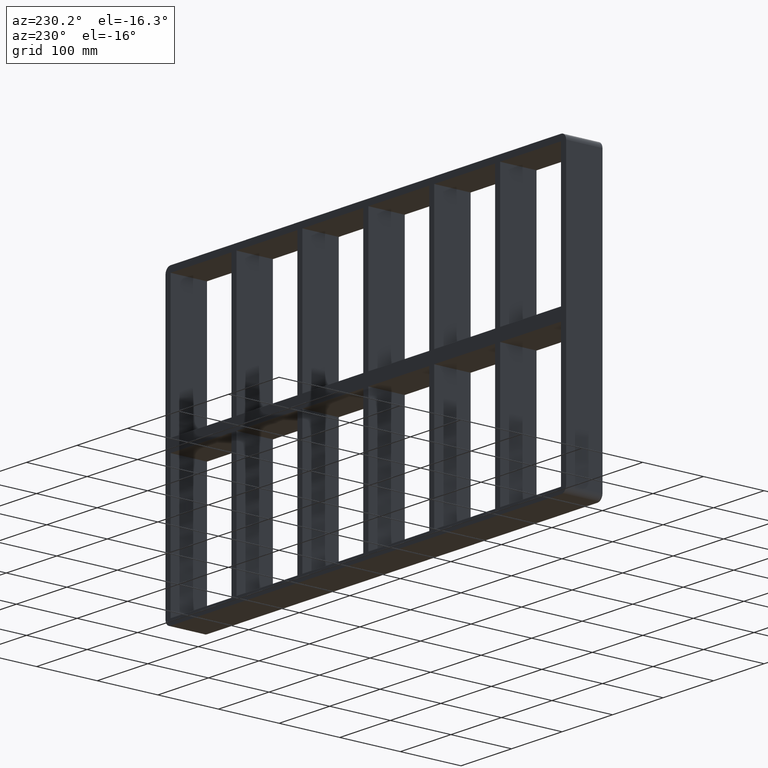
[diagram: clean part render]
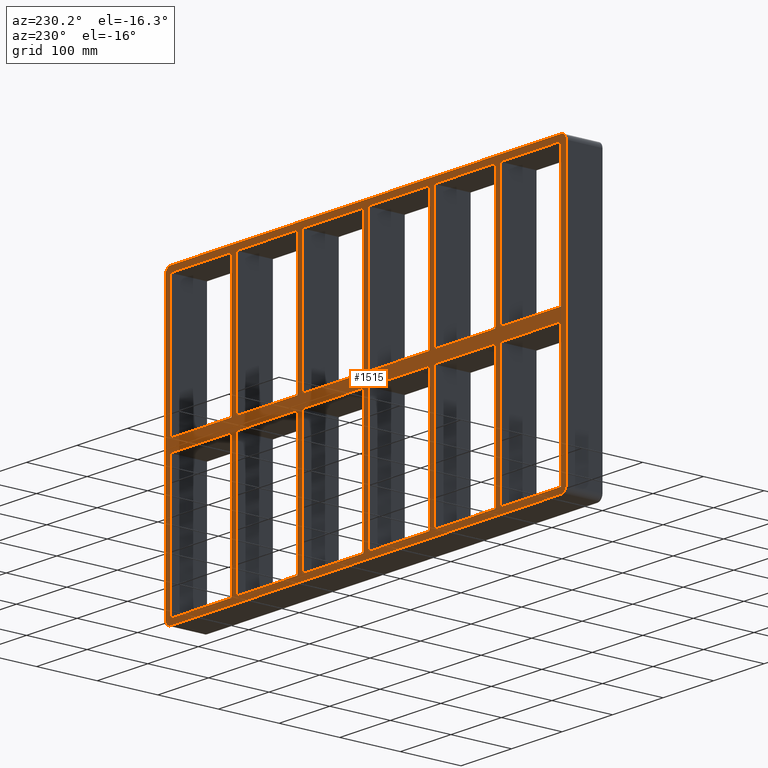
[diagram: same view with one face highlighted and labeled with its STEP entity id]
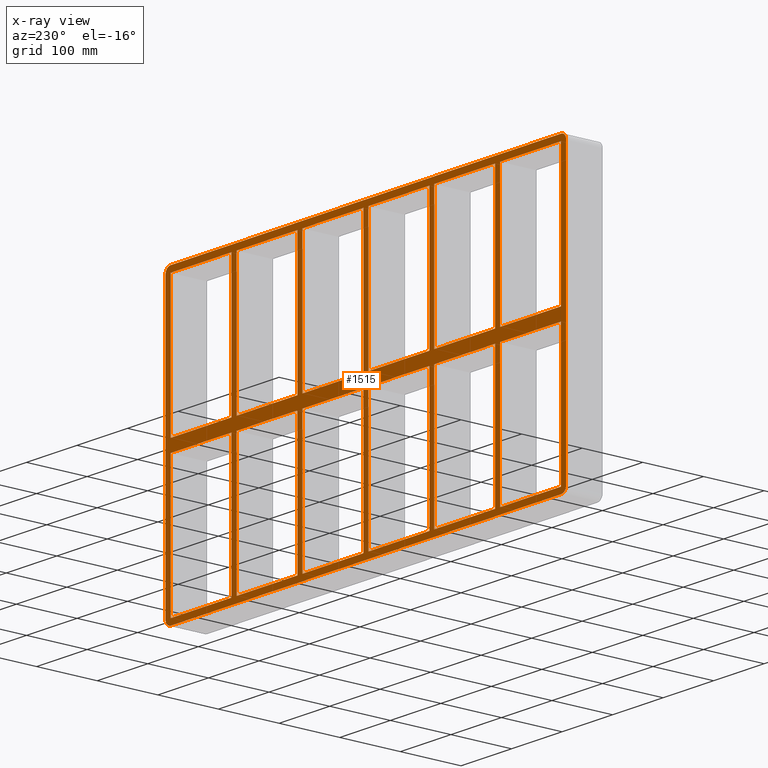
[diagram: x-ray of the same camera — body ghosted, the highlighted face saturated]
A machine part, auxiliary view. The second image highlights one B-rep face of the part: STEP entity #1515.
The next image is the same camera in x-ray: the body ghosted, the highlighted face saturated — about 0% of this face is hidden behind the body in this view.
In plain terms, the highlighted planar face has unit normal (0, 1, 0).
Its self-contained STEP definition (entity closure, byte-faithful):
#75=CARTESIAN_POINT('',(255.99999999999875,57.0,10.0));
#76=VERTEX_POINT('',#75);
#91=CARTESIAN_POINT('',(255.99999999999869,57.0,227.99999999999997));
#92=VERTEX_POINT('',#91);
#99=CARTESIAN_POINT('',(255.99999999999875,57.0,10.0));
#100=DIRECTION('',(0.0,0.0,1.0));
#101=VECTOR('',#100,217.99999999999997);
#102=LINE('',#99,#101);
#103=EDGE_CURVE('',#76,#92,#102,.T.);
#113=CARTESIAN_POINT('',(255.99999999999875,57.0,-10.000000000009344));
#114=VERTEX_POINT('',#113);
#123=CARTESIAN_POINT('',(255.99999999999878,57.0,-227.99999999999997));
#124=VERTEX_POINT('',#123);
#125=CARTESIAN_POINT('',(255.99999999999878,57.0,-227.99999999999997));
#126=DIRECTION('',(0.0,0.0,1.0));
#127=VECTOR('',#126,217.99999999999062);
#128=LINE('',#125,#127);
#129=EDGE_CURVE('',#124,#114,#128,.T.);
#153=CARTESIAN_POINT('',(265.99999999999642,57.0,10.0));
#154=VERTEX_POINT('',#153);
#163=CARTESIAN_POINT('',(265.99999999999642,57.0,227.99999999999997));
#164=VERTEX_POINT('',#163);
#165=CARTESIAN_POINT('',(265.99999999999642,57.0,227.99999999999997));
#166=DIRECTION('',(0.0,0.0,-1.0));
#167=VECTOR('',#166,217.99999999999997);
#168=LINE('',#165,#167);
#169=EDGE_CURVE('',#164,#154,#168,.T.);
#195=CARTESIAN_POINT('',(265.99999999999642,57.0,-10.000000000009344));
#196=VERTEX_POINT('',#195);
#211=CARTESIAN_POINT('',(265.99999999999642,57.0,-227.9999999999842));
#212=VERTEX_POINT('',#211);
#219=CARTESIAN_POINT('',(265.99999999999642,57.0,-10.000000000009351));
#220=DIRECTION('',(0.0,0.0,-1.0));
#221=VECTOR('',#220,217.99999999997488);
#222=LINE('',#219,#221);
#223=EDGE_CURVE('',#196,#212,#222,.T.);
#235=CARTESIAN_POINT('',(125.49999999999872,57.0,10.0));
#236=VERTEX_POINT('',#235);
#251=CARTESIAN_POINT('',(125.49999999999869,57.0,227.99999999999997));
#252=VERTEX_POINT('',#251);
#259=CARTESIAN_POINT('',(125.49999999999872,57.0,10.0));
#260=DIRECTION('',(0.0,0.0,1.0));
#261=VECTOR('',#260,217.99999999999997);
#262=LINE('',#259,#261);
#263=EDGE_CURVE('',#236,#252,#262,.T.);
#273=CARTESIAN_POINT('',(125.49999999999872,57.0,-10.000000000009344));
#274=VERTEX_POINT('',#273);
#283=CARTESIAN_POINT('',(125.49999999999876,57.0,-227.99999999999997));
#284=VERTEX_POINT('',#283);
#285=CARTESIAN_POINT('',(125.49999999999876,57.0,-227.99999999999997));
#286=DIRECTION('',(0.0,0.0,1.0));
#287=VECTOR('',#286,217.99999999999062);
#288=LINE('',#285,#287);
#289=EDGE_CURVE('',#284,#274,#288,.T.);
#313=CARTESIAN_POINT('',(135.49999999999642,57.0,10.0));
#314=VERTEX_POINT('',#313);
#323=CARTESIAN_POINT('',(135.49999999999642,57.0,227.99999999999997));
#324=VERTEX_POINT('',#323);
#325=CARTESIAN_POINT('',(135.49999999999642,57.0,227.99999999999997));
#326=DIRECTION('',(0.0,0.0,-1.0));
#327=VECTOR('',#326,217.99999999999997);
#328=LINE('',#325,#327);
#329=EDGE_CURVE('',#324,#314,#328,.T.);
#355=CARTESIAN_POINT('',(135.49999999999642,57.0,-10.000000000009344));
#356=VERTEX_POINT('',#355);
#371=CARTESIAN_POINT('',(135.49999999999642,57.0,-227.9999999999842));
#372=VERTEX_POINT('',#371);
#379=CARTESIAN_POINT('',(135.49999999999642,57.0,-10.000000000009351));
#380=DIRECTION('',(0.0,0.0,-1.0));
#381=VECTOR('',#380,217.99999999997488);
#382=LINE('',#379,#381);
#383=EDGE_CURVE('',#356,#372,#382,.T.);
#395=CARTESIAN_POINT('',(-5.000000000001315,57.0,10.0));
#396=VERTEX_POINT('',#395);
#411=CARTESIAN_POINT('',(-5.00000000000135,57.0,227.99999999999997));
#412=VERTEX_POINT('',#411);
#419=CARTESIAN_POINT('',(-5.000000000001316,57.0,10.0));
#420=DIRECTION('',(0.0,0.0,1.0));
#421=VECTOR('',#420,217.99999999999997);
#422=LINE('',#419,#421);
#423=EDGE_CURVE('',#396,#412,#422,.T.);
#433=CARTESIAN_POINT('',(-5.000000000001314,57.0,-10.000000000009379));
#434=VERTEX_POINT('',#433);
#443=CARTESIAN_POINT('',(-5.000000000001279,57.0,-227.99999999999997));
#444=VERTEX_POINT('',#443);
#445=CARTESIAN_POINT('',(-5.000000000001279,57.0,-227.99999999999997));
#446=DIRECTION('',(0.0,0.0,1.0));
#447=VECTOR('',#446,217.99999999999059);
#448=LINE('',#445,#447);
#449=EDGE_CURVE('',#444,#434,#448,.T.);
#473=CARTESIAN_POINT('',(4.999999999996376,57.0,10.0));
#474=VERTEX_POINT('',#473);
#483=CARTESIAN_POINT('',(4.999999999996376,57.0,227.99999999999997));
#484=VERTEX_POINT('',#483);
#485=CARTESIAN_POINT('',(4.999999999996376,57.0,227.99999999999997));
#486=DIRECTION('',(0.0,0.0,-1.0));
#487=VECTOR('',#486,217.99999999999997);
#488=LINE('',#485,#487);
#489=EDGE_CURVE('',#484,#474,#488,.T.);
#515=CARTESIAN_POINT('',(4.999999999996376,57.0,-10.000000000009344));
#516=VERTEX_POINT('',#515);
#531=CARTESIAN_POINT('',(4.999999999996376,57.0,-227.9999999999842));
#532=VERTEX_POINT('',#531);
#539=CARTESIAN_POINT('',(4.999999999996376,57.0,-10.000000000009351));
#540=DIRECTION('',(0.0,0.0,-1.0));
#541=VECTOR('',#540,217.99999999997488);
#542=LINE('',#539,#541);
#543=EDGE_CURVE('',#516,#532,#542,.T.);
#555=CARTESIAN_POINT('',(-135.50000000000131,57.0,10.0));
#556=VERTEX_POINT('',#555);
#571=CARTESIAN_POINT('',(-135.50000000000136,57.0,227.99999999999997));
#572=VERTEX_POINT('',#571);
#579=CARTESIAN_POINT('',(-135.50000000000131,57.0,10.0));
#580=DIRECTION('',(0.0,0.0,1.0));
#581=VECTOR('',#580,217.99999999999997);
#582=LINE('',#579,#581);
#583=EDGE_CURVE('',#556,#572,#582,.T.);
#593=CARTESIAN_POINT('',(-135.50000000000131,57.0,-10.000000000009379));
#594=VERTEX_POINT('',#593);
#603=CARTESIAN_POINT('',(-135.50000000000128,57.0,-227.99999999999997));
#604=VERTEX_POINT('',#603);
#605=CARTESIAN_POINT('',(-135.50000000000128,57.0,-227.99999999999997));
#606=DIRECTION('',(0.0,0.0,1.0));
#607=VECTOR('',#606,217.99999999999059);
#608=LINE('',#605,#607);
#609=EDGE_CURVE('',#604,#594,#608,.T.);
#633=CARTESIAN_POINT('',(-125.50000000000364,57.0,10.0));
#634=VERTEX_POINT('',#633);
#643=CARTESIAN_POINT('',(-125.50000000000364,57.0,227.99999999999997));
#644=VERTEX_POINT('',#643);
#645=CARTESIAN_POINT('',(-125.50000000000364,57.0,227.99999999999997));
#646=DIRECTION('',(0.0,0.0,-1.0));
#647=VECTOR('',#646,217.99999999999997);
#648=LINE('',#645,#647);
#649=EDGE_CURVE('',#644,#634,#648,.T.);
#675=CARTESIAN_POINT('',(-125.50000000000364,57.0,-10.000000000009379));
#676=VERTEX_POINT('',#675);
#691=CARTESIAN_POINT('',(-125.50000000000364,57.0,-227.9999999999842));
#692=VERTEX_POINT('',#691);
#699=CARTESIAN_POINT('',(-125.50000000000364,57.0,-10.000000000009379));
#700=DIRECTION('',(0.0,0.0,-1.0));
#701=VECTOR('',#700,217.99999999997485);
#702=LINE('',#699,#701);
#703=EDGE_CURVE('',#676,#692,#702,.T.);
#714=CARTESIAN_POINT('',(-256.00000000000364,57.0,-227.9999999999842));
#715=VERTEX_POINT('',#714);
#716=CARTESIAN_POINT('',(-256.00000000000358,57.0,-227.99999999999997));
#717=DIRECTION('',(1.0,0.0,0.0));
#718=VECTOR('',#717,120.50000000000227);
#719=LINE('',#716,#718);
#720=EDGE_CURVE('',#715,#604,#719,.T.);
#745=CARTESIAN_POINT('',(-125.50000000000364,57.0,-227.99999999999997));
#746=DIRECTION('',(1.0,0.0,0.0));
#747=VECTOR('',#746,120.50000000000236);
#748=LINE('',#745,#747);
#749=EDGE_CURVE('',#692,#444,#748,.T.);
#767=CARTESIAN_POINT('',(4.999999999996362,57.0,-227.99999999999997));
#768=DIRECTION('',(1.0,0.0,0.0));
#769=VECTOR('',#768,120.50000000000239);
#770=LINE('',#767,#769);
#771=EDGE_CURVE('',#532,#284,#770,.T.);
#789=CARTESIAN_POINT('',(135.49999999999642,57.0,-227.99999999999997));
#790=DIRECTION('',(1.0,0.0,0.0));
#791=VECTOR('',#790,120.50000000000233);
#792=LINE('',#789,#791);
#793=EDGE_CURVE('',#372,#124,#792,.T.);
#819=CARTESIAN_POINT('',(386.50000000000011,57.0,-227.99999999999997));
#820=VERTEX_POINT('',#819);
#827=CARTESIAN_POINT('',(265.99999999999642,57.0,-227.99999999999997));
#828=DIRECTION('',(1.0,0.0,0.0));
#829=VECTOR('',#828,120.50000000000369);
#830=LINE('',#827,#829);
#831=EDGE_CURVE('',#212,#820,#830,.T.);
#1153=CARTESIAN_POINT('',(386.49999999999631,57.0,-10.000000000009344));
#1154=VERTEX_POINT('',#1153);
#1155=CARTESIAN_POINT('',(386.49999999999636,57.0,-10.000000000009344));
#1156=DIRECTION('',(-1.0,0.0,0.0));
#1157=VECTOR('',#1156,120.49999999999994);
#1158=LINE('',#1155,#1157);
#1159=EDGE_CURVE('',#1154,#196,#1158,.T.);
#1178=CARTESIAN_POINT('',(-256.00000000000364,57.0,-10.000000000009372));
#1179=VERTEX_POINT('',#1178);
#1186=CARTESIAN_POINT('',(-135.50000000000136,57.0,-10.000000000009369));
#1187=DIRECTION('',(-1.0,0.0,0.0));
#1188=VECTOR('',#1187,120.50000000000227);
#1189=LINE('',#1186,#1188);
#1190=EDGE_CURVE('',#594,#1179,#1189,.T.);
#1203=CARTESIAN_POINT('',(-5.000000000001251,57.0,-10.000000000009361));
#1204=DIRECTION('',(-1.0,0.0,0.0));
#1205=VECTOR('',#1204,120.50000000000239);
#1206=LINE('',#1203,#1205);
#1207=EDGE_CURVE('',#434,#676,#1206,.T.);
#1220=CARTESIAN_POINT('',(125.49999999999875,57.0,-10.000000000009356));
#1221=DIRECTION('',(-1.0,0.0,0.0));
#1222=VECTOR('',#1221,120.50000000000239);
#1223=LINE('',#1220,#1222);
#1224=EDGE_CURVE('',#274,#516,#1223,.T.);
#1229=CARTESIAN_POINT('',(0.0,57.0,0.0));
#1230=DIRECTION('',(0.0,1.0,0.0));
#1231=DIRECTION('',(0.0,0.0,1.0));
#1232=AXIS2_PLACEMENT_3D('',#1229,#1230,#1231);
#1233=PLANE('',#1232);
#1234=CARTESIAN_POINT('',(386.50000000000006,57.0,-238.0));
#1235=VERTEX_POINT('',#1234);
#1236=CARTESIAN_POINT('',(396.50000000000006,57.0,-228.0));
#1237=VERTEX_POINT('',#1236);
#1238=CARTESIAN_POINT('',(386.50000000000006,57.0,-228.0));
#1239=DIRECTION('',(0.0,-1.0,0.0));
#1240=DIRECTION('',(0.707106781186547,0.0,-0.707106781186547));
#1241=AXIS2_PLACEMENT_3D('',#1238,#1239,#1240);
#1242=CIRCLE('',#1241,9.999999999999998);
#1243=EDGE_CURVE('',#1235,#1237,#1242,.T.);
#1244=ORIENTED_EDGE('',*,*,#1243,.F.);
#1245=CARTESIAN_POINT('',(-386.50000000000006,57.0,-238.0));
#1246=VERTEX_POINT('',#1245);
#1247=CARTESIAN_POINT('',(386.50000000000006,57.0,-238.0));
#1248=DIRECTION('',(-1.0,0.0,0.0));
#1249=VECTOR('',#1248,773.00000000000011);
#1250=LINE('',#1247,#1249);
#1251=EDGE_CURVE('',#1235,#1246,#1250,.T.);
#1252=ORIENTED_EDGE('',*,*,#1251,.T.);
#1253=CARTESIAN_POINT('',(-396.50000000000006,57.0,-228.0));
#1254=VERTEX_POINT('',#1253);
#1255=CARTESIAN_POINT('',(-386.50000000000006,57.0,-228.0));
#1256=DIRECTION('',(0.0,-1.0,0.0));
#1257=DIRECTION('',(-0.707106781186547,0.0,-0.707106781186547));
#1258=AXIS2_PLACEMENT_3D('',#1255,#1256,#1257);
#1259=CIRCLE('',#1258,9.999999999999998);
#1260=EDGE_CURVE('',#1254,#1246,#1259,.T.);
#1261=ORIENTED_EDGE('',*,*,#1260,.F.);
#1262=CARTESIAN_POINT('',(-396.50000000000006,57.0,228.0));
#1263=VERTEX_POINT('',#1262);
#1264=CARTESIAN_POINT('',(-396.50000000000006,57.0,-228.0));
#1265=DIRECTION('',(0.0,0.0,1.0));
#1266=VECTOR('',#1265,456.0);
#1267=LINE('',#1264,#1266);
#1268=EDGE_CURVE('',#1254,#1263,#1267,.T.);
#1269=ORIENTED_EDGE('',*,*,#1268,.T.);
#1270=CARTESIAN_POINT('',(-386.50000000000006,57.0,238.0));
#1271=VERTEX_POINT('',#1270);
#1272=CARTESIAN_POINT('',(-386.50000000000006,57.0,228.0));
#1273=DIRECTION('',(0.0,-1.0,0.0));
#1274=DIRECTION('',(-0.707106781186547,0.0,0.707106781186547));
#1275=AXIS2_PLACEMENT_3D('',#1272,#1273,#1274);
#1276=CIRCLE('',#1275,9.999999999999998);
#1277=EDGE_CURVE('',#1271,#1263,#1276,.T.);
#1278=ORIENTED_EDGE('',*,*,#1277,.F.);
#1279=CARTESIAN_POINT('',(386.50000000000006,57.0,238.0));
#1280=VERTEX_POINT('',#1279);
#1281=CARTESIAN_POINT('',(-386.50000000000006,57.0,238.0));
#1282=DIRECTION('',(1.0,0.0,0.0));
#1283=VECTOR('',#1282,773.00000000000011);
#1284=LINE('',#1281,#1283);
#1285=EDGE_CURVE('',#1271,#1280,#1284,.T.);
#1286=ORIENTED_EDGE('',*,*,#1285,.T.);
#1287=CARTESIAN_POINT('',(396.50000000000006,57.0,228.0));
#1288=VERTEX_POINT('',#1287);
#1289=CARTESIAN_POINT('',(386.50000000000006,57.0,228.0));
#1290=DIRECTION('',(0.0,-1.0,0.0));
#1291=DIRECTION('',(0.707106781186547,0.0,0.707106781186547));
#1292=AXIS2_PLACEMENT_3D('',#1289,#1290,#1291);
#1293=CIRCLE('',#1292,9.999999999999998);
#1294=EDGE_CURVE('',#1288,#1280,#1293,.T.);
#1295=ORIENTED_EDGE('',*,*,#1294,.F.);
#1296=CARTESIAN_POINT('',(396.50000000000006,57.0,228.0));
#1297=DIRECTION('',(0.0,0.0,-1.0));
#1298=VECTOR('',#1297,456.0);
#1299=LINE('',#1296,#1298);
#1300=EDGE_CURVE('',#1288,#1237,#1299,.T.);
#1301=ORIENTED_EDGE('',*,*,#1300,.T.);
#1302=EDGE_LOOP('',(#1244,#1252,#1261,#1269,#1278,#1286,#1295,#1301));
#1303=FACE_OUTER_BOUND('',#1302,.T.);
#1304=ORIENTED_EDGE('',*,*,#831,.T.);
#1305=CARTESIAN_POINT('',(386.50000000000011,57.0,-227.99999999999994));
#1306=DIRECTION('',(0.0,0.0,1.0));
#1307=VECTOR('',#1306,217.99999999999059);
#1308=LINE('',#1305,#1307);
#1309=EDGE_CURVE('',#820,#1154,#1308,.T.);
#1310=ORIENTED_EDGE('',*,*,#1309,.T.);
#1311=ORIENTED_EDGE('',*,*,#1159,.T.);
#1312=ORIENTED_EDGE('',*,*,#223,.T.);
#1313=EDGE_LOOP('',(#1304,#1310,#1311,#1312));
#1314=FACE_BOUND('',#1313,.T.);
#1315=CARTESIAN_POINT('',(386.5,57.0,10.0));
#1316=VERTEX_POINT('',#1315);
#1317=CARTESIAN_POINT('',(265.99999999999653,57.0,10.0));
#1318=DIRECTION('',(1.0,0.0,0.0));
#1319=VECTOR('',#1318,120.50000000000341);
#1320=LINE('',#1317,#1319);
#1321=EDGE_CURVE('',#154,#1316,#1320,.T.);
#1322=ORIENTED_EDGE('',*,*,#1321,.T.);
#1323=CARTESIAN_POINT('',(386.50000000000011,57.0,227.99999999999997));
#1324=VERTEX_POINT('',#1323);
#1325=CARTESIAN_POINT('',(386.50000000000011,57.0,10.0));
#1326=DIRECTION('',(0.0,0.0,1.0));
#1327=VECTOR('',#1326,217.99999999999997);
#1328=LINE('',#1325,#1327);
#1329=EDGE_CURVE('',#1316,#1324,#1328,.T.);
#1330=ORIENTED_EDGE('',*,*,#1329,.T.);
#1331=CARTESIAN_POINT('',(386.50000000000011,57.0,228.0));
#1332=DIRECTION('',(-1.0,0.0,0.0));
#1333=VECTOR('',#1332,120.50000000000375);
#1334=LINE('',#1331,#1333);
#1335=EDGE_CURVE('',#1324,#164,#1334,.T.);
#1336=ORIENTED_EDGE('',*,*,#1335,.T.);
#1337=ORIENTED_EDGE('',*,*,#169,.T.);
#1338=EDGE_LOOP('',(#1322,#1330,#1336,#1337));
#1339=FACE_BOUND('',#1338,.T.);
#1340=ORIENTED_EDGE('',*,*,#129,.T.);
#1341=CARTESIAN_POINT('',(255.99999999999875,57.0,-10.000000000009349));
#1342=DIRECTION('',(-1.0,0.0,0.0));
#1343=VECTOR('',#1342,120.50000000000233);
#1344=LINE('',#1341,#1343);
#1345=EDGE_CURVE('',#114,#356,#1344,.T.);
#1346=ORIENTED_EDGE('',*,*,#1345,.T.);
#1347=ORIENTED_EDGE('',*,*,#383,.T.);
#1348=ORIENTED_EDGE('',*,*,#793,.T.);
#1349=EDGE_LOOP('',(#1340,#1346,#1347,#1348));
#1350=FACE_BOUND('',#1349,.T.);
#1351=ORIENTED_EDGE('',*,*,#103,.T.);
#1352=CARTESIAN_POINT('',(255.99999999999866,57.0,228.0));
#1353=DIRECTION('',(-1.0,0.0,0.0));
#1354=VECTOR('',#1353,120.50000000000222);
#1355=LINE('',#1352,#1354);
#1356=EDGE_CURVE('',#92,#324,#1355,.T.);
#1357=ORIENTED_EDGE('',*,*,#1356,.T.);
#1358=ORIENTED_EDGE('',*,*,#329,.T.);
#1359=CARTESIAN_POINT('',(135.49999999999642,57.0,10.0));
#1360=DIRECTION('',(1.0,0.0,0.0));
#1361=VECTOR('',#1360,120.50000000000239);
#1362=LINE('',#1359,#1361);
#1363=EDGE_CURVE('',#314,#76,#1362,.T.);
#1364=ORIENTED_EDGE('',*,*,#1363,.T.);
#1365=EDGE_LOOP('',(#1351,#1357,#1358,#1364));
#1366=FACE_BOUND('',#1365,.T.);
#1367=ORIENTED_EDGE('',*,*,#289,.T.);
#1368=ORIENTED_EDGE('',*,*,#1224,.T.);
#1369=ORIENTED_EDGE('',*,*,#543,.T.);
#1370=ORIENTED_EDGE('',*,*,#771,.T.);
#1371=EDGE_LOOP('',(#1367,#1368,#1369,#1370));
#1372=FACE_BOUND('',#1371,.T.);
#1373=ORIENTED_EDGE('',*,*,#263,.T.);
#1374=CARTESIAN_POINT('',(125.49999999999872,57.0,228.0));
#1375=DIRECTION('',(-1.0,0.0,0.0));
#1376=VECTOR('',#1375,120.50000000000233);
#1377=LINE('',#1374,#1376);
#1378=EDGE_CURVE('',#252,#484,#1377,.T.);
#1379=ORIENTED_EDGE('',*,*,#1378,.T.);
#1380=ORIENTED_EDGE('',*,*,#489,.T.);
#1381=CARTESIAN_POINT('',(4.999999999996419,57.0,10.0));
#1382=DIRECTION('',(1.0,0.0,0.0));
#1383=VECTOR('',#1382,120.50000000000239);
#1384=LINE('',#1381,#1383);
#1385=EDGE_CURVE('',#474,#236,#1384,.T.);
#1386=ORIENTED_EDGE('',*,*,#1385,.T.);
#1387=EDGE_LOOP('',(#1373,#1379,#1380,#1386));
#1388=FACE_BOUND('',#1387,.T.);
#1389=ORIENTED_EDGE('',*,*,#449,.T.);
#1390=ORIENTED_EDGE('',*,*,#1207,.T.);
#1391=ORIENTED_EDGE('',*,*,#703,.T.);
#1392=ORIENTED_EDGE('',*,*,#749,.T.);
#1393=EDGE_LOOP('',(#1389,#1390,#1391,#1392));
#1394=FACE_BOUND('',#1393,.T.);
#1395=ORIENTED_EDGE('',*,*,#423,.T.);
#1396=CARTESIAN_POINT('',(-5.000000000001336,57.0,228.0));
#1397=DIRECTION('',(-1.0,0.0,0.0));
#1398=VECTOR('',#1397,120.5000000000023);
#1399=LINE('',#1396,#1398);
#1400=EDGE_CURVE('',#412,#644,#1399,.T.);
#1401=ORIENTED_EDGE('',*,*,#1400,.T.);
#1402=ORIENTED_EDGE('',*,*,#649,.T.);
#1403=CARTESIAN_POINT('',(-125.50000000000364,57.0,10.0));
#1404=DIRECTION('',(1.0,0.0,0.0));
#1405=VECTOR('',#1404,120.50000000000233);
#1406=LINE('',#1403,#1405);
#1407=EDGE_CURVE('',#634,#396,#1406,.T.);
#1408=ORIENTED_EDGE('',*,*,#1407,.T.);
#1409=EDGE_LOOP('',(#1395,#1401,#1402,#1408));
#1410=FACE_BOUND('',#1409,.T.);
#1411=ORIENTED_EDGE('',*,*,#609,.T.);
#1412=ORIENTED_EDGE('',*,*,#1190,.T.);
#1413=CARTESIAN_POINT('',(-256.00000000000364,57.0,-10.000000000009379));
#1414=DIRECTION('',(0.0,0.0,-1.0));
#1415=VECTOR('',#1414,217.99999999997485);
#1416=LINE('',#1413,#1415);
#1417=EDGE_CURVE('',#1179,#715,#1416,.T.);
#1418=ORIENTED_EDGE('',*,*,#1417,.T.);
#1419=ORIENTED_EDGE('',*,*,#720,.T.);
#1420=EDGE_LOOP('',(#1411,#1412,#1418,#1419));
#1421=FACE_BOUND('',#1420,.T.);
#1422=CARTESIAN_POINT('',(-386.49999999999983,57.0,10.0));
#1423=VERTEX_POINT('',#1422);
#1424=CARTESIAN_POINT('',(-266.00000000000131,57.0,10.0));
#1425=VERTEX_POINT('',#1424);
#1426=CARTESIAN_POINT('',(-386.49999999999983,57.0,10.0));
#1427=DIRECTION('',(1.0,0.0,0.0));
#1428=VECTOR('',#1427,120.49999999999852);
#1429=LINE('',#1426,#1428);
#1430=EDGE_CURVE('',#1423,#1425,#1429,.T.);
#1431=ORIENTED_EDGE('',*,*,#1430,.T.);
#1432=CARTESIAN_POINT('',(-266.00000000000136,57.0,227.99999999999997));
#1433=VERTEX_POINT('',#1432);
#1434=CARTESIAN_POINT('',(-266.00000000000136,57.0,10.0));
#1435=DIRECTION('',(0.0,0.0,1.0));
#1436=VECTOR('',#1435,217.99999999999997);
#1437=LINE('',#1434,#1436);
#1438=EDGE_CURVE('',#1425,#1433,#1437,.T.);
#1439=ORIENTED_EDGE('',*,*,#1438,.T.);
#1440=CARTESIAN_POINT('',(-386.5,57.0,227.99999999999997));
#1441=VERTEX_POINT('',#1440);
#1442=CARTESIAN_POINT('',(-266.00000000000136,57.0,228.0));
#1443=DIRECTION('',(-1.0,0.0,0.0));
#1444=VECTOR('',#1443,120.49999999999864);
#1445=LINE('',#1442,#1444);
#1446=EDGE_CURVE('',#1433,#1441,#1445,.T.);
#1447=ORIENTED_EDGE('',*,*,#1446,.T.);
#1448=CARTESIAN_POINT('',(-386.50000000000006,57.0,227.99999999999994));
#1449=DIRECTION('',(0.0,0.0,-1.0));
#1450=VECTOR('',#1449,217.99999999999994);
#1451=LINE('',#1448,#1450);
#1452=EDGE_CURVE('',#1441,#1423,#1451,.T.);
#1453=ORIENTED_EDGE('',*,*,#1452,.T.);
#1454=EDGE_LOOP('',(#1431,#1439,#1447,#1453));
#1455=FACE_BOUND('',#1454,.T.);
#1456=CARTESIAN_POINT('',(-386.49999999999983,57.0,-10.000000000009379));
#1457=VERTEX_POINT('',#1456);
#1458=CARTESIAN_POINT('',(-386.5,57.0,-227.99999999999997));
#1459=VERTEX_POINT('',#1458);
#1460=CARTESIAN_POINT('',(-386.50000000000006,57.0,-10.000000000009379));
#1461=DIRECTION('',(0.0,0.0,-1.0));
#1462=VECTOR('',#1461,217.99999999999059);
#1463=LINE('',#1460,#1462);
#1464=EDGE_CURVE('',#1457,#1459,#1463,.T.);
#1465=ORIENTED_EDGE('',*,*,#1464,.T.);
#1466=CARTESIAN_POINT('',(-266.00000000000131,57.0,-227.99999999999997));
#1467=VERTEX_POINT('',#1466);
#1468=CARTESIAN_POINT('',(-386.50000000000006,57.0,-227.99999999999997));
#1469=DIRECTION('',(1.0,0.0,0.0));
#1470=VECTOR('',#1469,120.49999999999875);
#1471=LINE('',#1468,#1470);
#1472=EDGE_CURVE('',#1459,#1467,#1471,.T.);
#1473=ORIENTED_EDGE('',*,*,#1472,.T.);
#1474=CARTESIAN_POINT('',(-266.00000000000136,57.0,-10.000000000009376));
#1475=VERTEX_POINT('',#1474);
#1476=CARTESIAN_POINT('',(-266.00000000000131,57.0,-227.99999999999997));
#1477=DIRECTION('',(0.0,0.0,1.0));
#1478=VECTOR('',#1477,217.99999999999059);
#1479=LINE('',#1476,#1478);
#1480=EDGE_CURVE('',#1467,#1475,#1479,.T.);
#1481=ORIENTED_EDGE('',*,*,#1480,.T.);
#1482=CARTESIAN_POINT('',(-266.00000000000136,57.0,-10.000000000009374));
#1483=DIRECTION('',(-1.0,0.0,0.0));
#1484=VECTOR('',#1483,120.49999999999841);
#1485=LINE('',#1482,#1484);
#1486=EDGE_CURVE('',#1475,#1457,#1485,.T.);
#1487=ORIENTED_EDGE('',*,*,#1486,.T.);
#1488=EDGE_LOOP('',(#1465,#1473,#1481,#1487));
#1489=FACE_BOUND('',#1488,.T.);
#1490=ORIENTED_EDGE('',*,*,#583,.T.);
#1491=CARTESIAN_POINT('',(-256.00000000000364,57.0,227.99999999999997));
#1492=VERTEX_POINT('',#1491);
#1493=CARTESIAN_POINT('',(-135.50000000000136,57.0,228.0));
#1494=DIRECTION('',(-1.0,0.0,0.0));
#1495=VECTOR('',#1494,120.50000000000227);
#1496=LINE('',#1493,#1495);
#1497=EDGE_CURVE('',#572,#1492,#1496,.T.);
#1498=ORIENTED_EDGE('',*,*,#1497,.T.);
#1499=CARTESIAN_POINT('',(-256.00000000000364,57.0,10.0));
#1500=VERTEX_POINT('',#1499);
#1501=CARTESIAN_POINT('',(-256.00000000000364,57.0,227.99999999999997));
#1502=DIRECTION('',(0.0,0.0,-1.0));
#1503=VECTOR('',#1502,217.99999999999997);
#1504=LINE('',#1501,#1503);
#1505=EDGE_CURVE('',#1492,#1500,#1504,.T.);
#1506=ORIENTED_EDGE('',*,*,#1505,.T.);
#1507=CARTESIAN_POINT('',(-256.00000000000364,57.0,10.0));
#1508=DIRECTION('',(1.0,0.0,0.0));
#1509=VECTOR('',#1508,120.50000000000233);
#1510=LINE('',#1507,#1509);
#1511=EDGE_CURVE('',#1500,#556,#1510,.T.);
#1512=ORIENTED_EDGE('',*,*,#1511,.T.);
#1513=EDGE_LOOP('',(#1490,#1498,#1506,#1512));
#1514=FACE_BOUND('',#1513,.T.);
#1515=ADVANCED_FACE('',(#1303,#1314,#1339,#1350,#1366,#1372,#1388,#1394,#1410,#1421,#1455,#1489,#1514),#1233,.T.);